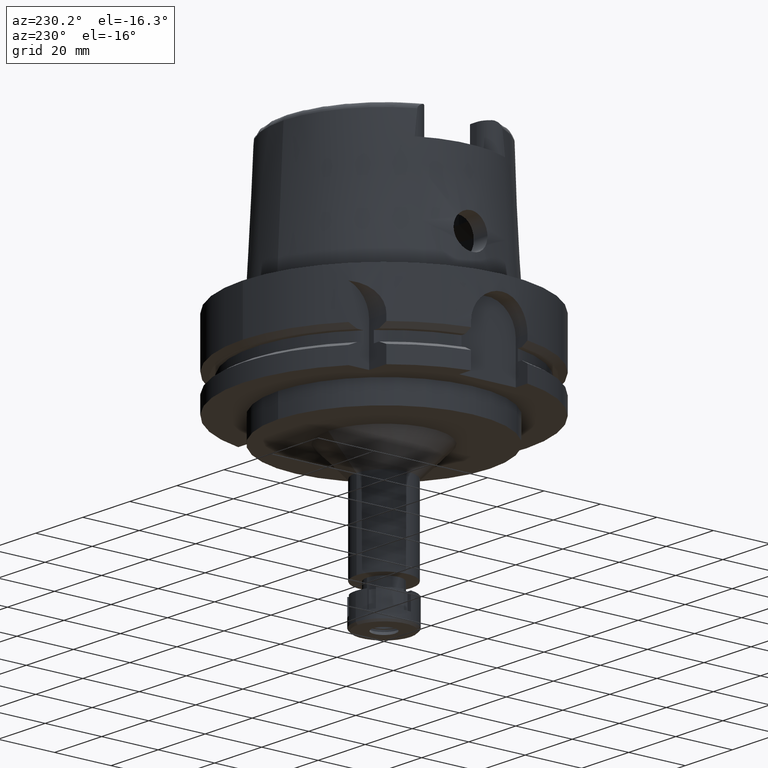
[diagram: clean part render]
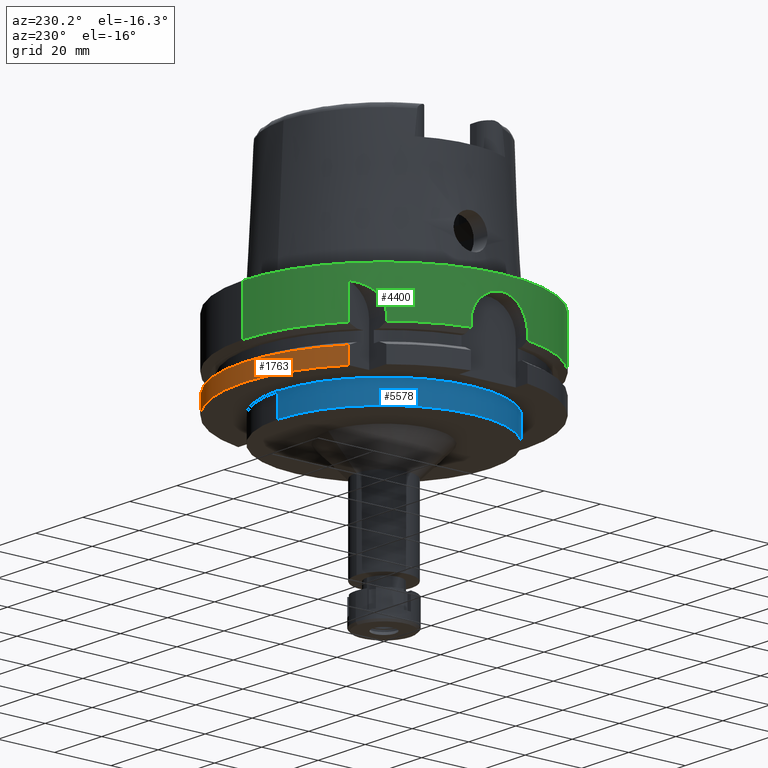
[diagram: same view with three faces highlighted in distinct colors, each labeled with its STEP entity id]
A machine part, auxiliary view with three faces highlighted in distinct colors.
Their STEP definitions:

[orange] entity #1763 — the highlighted cylindrical surface (partial cylindrical patch) has radius 50 mm, axis along (0, 0, 1).
#22 = DIRECTION ( 'NONE',  ( 0.0000000000000000000, 1.000000000000000000, 0.0000000000000000000 ) ) ;
#129 = CARTESIAN_POINT ( 'NONE',  ( 0.0000000000000000000, 0.0000000000000000000, -23.24759526419000011 ) ) ;
#160 = EDGE_CURVE ( 'NONE', #4142, #3308, #2028, .T. ) ;
#397 = CARTESIAN_POINT ( 'NONE',  ( -31.50000000000000000, 38.82975663071000128, -29.00000000000000000 ) ) ;
#509 = CARTESIAN_POINT ( 'NONE',  ( 0.0000000000000000000, 0.0000000000000000000, -91.75000000000000000 ) ) ;
#604 = DIRECTION ( 'NONE',  ( -0.6299999999999789102, 0.7765951326141738997, 0.0000000000000000000 ) ) ;
#613 = ORIENTED_EDGE ( 'NONE', *, *, #5930, .T. ) ;
#700 = EDGE_CURVE ( 'NONE', #4907, #3308, #1897, .T. ) ;
#894 = CARTESIAN_POINT ( 'NONE',  ( -31.50000355985999789, 38.82975374283000036, -23.24760820811999906 ) ) ;
#1071 = DIRECTION ( 'NONE',  ( 0.0000000000000000000, 0.0000000000000000000, -1.000000000000000000 ) ) ;
#1157 = AXIS2_PLACEMENT_3D ( 'NONE', #1813, #5655, #4725 ) ;
#1226 = VECTOR ( 'NONE', #4230, 1000.000000000000000 ) ;
#1706 = ORIENTED_EDGE ( 'NONE', *, *, #160, .T. ) ;
#1763 = ADVANCED_FACE ( 'NONE', ( #3809 ), #2417, .T. ) ;
#1813 = CARTESIAN_POINT ( 'NONE',  ( 0.0000000000000000000, 0.0000000000000000000, -29.00000000000000000 ) ) ;
#1897 = LINE ( 'NONE', #2246, #1226 ) ;
#2024 = ORIENTED_EDGE ( 'NONE', *, *, #4323, .F. ) ;
#2028 = CIRCLE ( 'NONE', #3737, 50.00000000000000711 ) ;
#2246 = CARTESIAN_POINT ( 'NONE',  ( 48.77499359303000404, 11.00000000000000000, -29.00000000000000000 ) ) ;
#2417 = CYLINDRICAL_SURFACE ( 'NONE', #4253, 50.00000000000000000 ) ;
#2480 = CARTESIAN_POINT ( 'NONE',  ( -31.50000355985999789, 38.82975374283000036, -23.24760820811999906 ) ) ;
#2973 = VECTOR ( 'NONE', #6185, 1000.000000000000000 ) ;
#3308 = VERTEX_POINT ( 'NONE', #5605 ) ;
#3737 = AXIS2_PLACEMENT_3D ( 'NONE', #129, #1071, #604 ) ;
#3809 = FACE_OUTER_BOUND ( 'NONE', #6026, .T. ) ;
#3862 = LINE ( 'NONE', #2480, #2973 ) ;
#4014 = VERTEX_POINT ( 'NONE', #397 ) ;
#4142 = VERTEX_POINT ( 'NONE', #894 ) ;
#4230 = DIRECTION ( 'NONE',  ( -8.399427413532000465E-14, -2.068976605539000027E-14, 1.000000000000000000 ) ) ;
#4253 = AXIS2_PLACEMENT_3D ( 'NONE', #509, #4348, #22 ) ;
#4323 = EDGE_CURVE ( 'NONE', #4142, #4014, #3862, .T. ) ;
#4348 = DIRECTION ( 'NONE',  ( 0.0000000000000000000, 0.0000000000000000000, 1.000000000000000000 ) ) ;
#4725 = DIRECTION ( 'NONE',  ( 0.0000000000000000000, 1.000000000000000000, 0.0000000000000000000 ) ) ;
#4907 = VERTEX_POINT ( 'NONE', #6155 ) ;
#5483 = CIRCLE ( 'NONE', #1157, 50.00000000000000000 ) ;
#5554 = ORIENTED_EDGE ( 'NONE', *, *, #700, .F. ) ;
#5605 = CARTESIAN_POINT ( 'NONE',  ( 48.77499359303000404, 11.00000000000000000, -23.24759526419000011 ) ) ;
#5655 = DIRECTION ( 'NONE',  ( 0.0000000000000000000, 0.0000000000000000000, 1.000000000000000000 ) ) ;
#5930 = EDGE_CURVE ( 'NONE', #4907, #4014, #5483, .T. ) ;
#6026 = EDGE_LOOP ( 'NONE', ( #1706, #5554, #613, #2024 ) ) ;
#6155 = CARTESIAN_POINT ( 'NONE',  ( 48.77499359303000404, 11.00000000000000000, -29.00000000000000000 ) ) ;
#6185 = DIRECTION ( 'NONE',  ( 6.188494047474892859E-07, 5.020316378013912240E-07, -0.9999999999996824762 ) ) ;

[blue] entity #5578 — the highlighted cylindrical surface (partial cylindrical patch) has radius 37.5 mm, axis along (0, 0, 1).
#141 = CIRCLE ( 'NONE', #3145, 37.50000000000000000 ) ;
#181 = CARTESIAN_POINT ( 'NONE',  ( 0.0000000000000000000, -37.50000000000000000, -29.00000000000000000 ) ) ;
#344 = CARTESIAN_POINT ( 'NONE',  ( 0.0000000000000000000, 0.0000000000000000000, -37.00000000000000000 ) ) ;
#495 = DIRECTION ( 'NONE',  ( 0.0000000000000000000, 1.000000000000000000, 0.0000000000000000000 ) ) ;
#704 = DIRECTION ( 'NONE',  ( 0.0000000000000000000, 0.0000000000000000000, 1.000000000000000000 ) ) ;
#788 = CYLINDRICAL_SURFACE ( 'NONE', #1961, 37.50000000000000000 ) ;
#1227 = CARTESIAN_POINT ( 'NONE',  ( 0.0000000000000000000, 37.50000000000000000, -37.00000000000000000 ) ) ;
#1827 = CARTESIAN_POINT ( 'NONE',  ( 0.0000000000000000000, 37.50000000000000000, -29.00000000000000000 ) ) ;
#1879 = EDGE_CURVE ( 'NONE', #2439, #3694, #141, .T. ) ;
#1961 = AXIS2_PLACEMENT_3D ( 'NONE', #5105, #704, #4637 ) ;
#2041 = CARTESIAN_POINT ( 'NONE',  ( 0.0000000000000000000, 0.0000000000000000000, -29.00000000000000000 ) ) ;
#2229 = DIRECTION ( 'NONE',  ( 0.0000000000000000000, 0.0000000000000000000, 1.000000000000000000 ) ) ;
#2350 = VECTOR ( 'NONE', #4800, 1000.000000000000000 ) ;
#2439 = VERTEX_POINT ( 'NONE', #181 ) ;
#2453 = CIRCLE ( 'NONE', #5681, 37.50000000000000000 ) ;
#2733 = EDGE_CURVE ( 'NONE', #3694, #3137, #5234, .T. ) ;
#2955 = ORIENTED_EDGE ( 'NONE', *, *, #4444, .T. ) ;
#3083 = DIRECTION ( 'NONE',  ( 0.0000000000000000000, -1.000000000000000000, 0.0000000000000000000 ) ) ;
#3137 = VERTEX_POINT ( 'NONE', #1227 ) ;
#3145 = AXIS2_PLACEMENT_3D ( 'NONE', #2041, #4947, #3083 ) ;
#3271 = CARTESIAN_POINT ( 'NONE',  ( 0.0000000000000000000, 37.50000000000000000, -29.00000000000000000 ) ) ;
#3456 = VECTOR ( 'NONE', #4712, 1000.000000000000000 ) ;
#3569 = EDGE_LOOP ( 'NONE', ( #2955, #4852, #4203, #5736 ) ) ;
#3622 = CARTESIAN_POINT ( 'NONE',  ( 0.0000000000000000000, -37.50000000000000000, -37.00000000000000000 ) ) ;
#3694 = VERTEX_POINT ( 'NONE', #3271 ) ;
#3712 = CARTESIAN_POINT ( 'NONE',  ( 0.0000000000000000000, -37.50000000000000000, -29.00000000000000000 ) ) ;
#4072 = FACE_OUTER_BOUND ( 'NONE', #3569, .T. ) ;
#4203 = ORIENTED_EDGE ( 'NONE', *, *, #1879, .T. ) ;
#4444 = EDGE_CURVE ( 'NONE', #3137, #5526, #2453, .T. ) ;
#4509 = EDGE_CURVE ( 'NONE', #2439, #5526, #5198, .T. ) ;
#4637 = DIRECTION ( 'NONE',  ( 0.0000000000000000000, 1.000000000000000000, 0.0000000000000000000 ) ) ;
#4712 = DIRECTION ( 'NONE',  ( 0.0000000000000000000, 0.0000000000000000000, -1.000000000000000000 ) ) ;
#4800 = DIRECTION ( 'NONE',  ( 0.0000000000000000000, 0.0000000000000000000, -1.000000000000000000 ) ) ;
#4852 = ORIENTED_EDGE ( 'NONE', *, *, #4509, .F. ) ;
#4947 = DIRECTION ( 'NONE',  ( 0.0000000000000000000, 0.0000000000000000000, -1.000000000000000000 ) ) ;
#5105 = CARTESIAN_POINT ( 'NONE',  ( 0.0000000000000000000, 0.0000000000000000000, -91.75000000000000000 ) ) ;
#5198 = LINE ( 'NONE', #3712, #2350 ) ;
#5234 = LINE ( 'NONE', #1827, #3456 ) ;
#5526 = VERTEX_POINT ( 'NONE', #3622 ) ;
#5578 = ADVANCED_FACE ( 'NONE', ( #4072 ), #788, .T. ) ;
#5681 = AXIS2_PLACEMENT_3D ( 'NONE', #344, #2229, #495 ) ;
#5736 = ORIENTED_EDGE ( 'NONE', *, *, #2733, .T. ) ;

[green] entity #4400 — the highlighted cylindrical surface (partial cylindrical patch) has radius 50 mm, axis along (0, 0, 1).
#69 = CARTESIAN_POINT ( 'NONE',  ( 1.065814103639999922E-14, 50.00000000000000000, -16.75240473580999989 ) ) ;
#79 = EDGE_CURVE ( 'NONE', #864, #297, #5508, .T. ) ;
#113 = CYLINDRICAL_SURFACE ( 'NONE', #3375, 50.00000000000000000 ) ;
#126 = VERTEX_POINT ( 'NONE', #695 ) ;
#180 = B_SPLINE_CURVE_WITH_KNOTS ( 'NONE', 3,
 ( #3071, #713, #6085, #299, #771, #1236, #3663, #240, #3096, #5024, #2690, #4617, #6025, #1683, #3191, #2714, #5112, #3604, #1180, #2209, #1270, #4141, #2628, #1651, #5999, #4645, #6050, #3540, #5523, #5494, #1205, #3573, #4553, #1709, #3125, #3629, #682, #2185, #1741, #274, #4114, #5458, #5051, #1148, #5586, #743, #2663, #327, #4592, #4998, #796, #5552, #2243, #2599 ),
 .UNSPECIFIED., .F., .F.,
 ( 4, 2, 2, 2, 2, 2, 2, 2, 2, 2, 2, 2, 2, 2, 2, 2, 2, 2, 2, 2, 2, 2, 2, 2, 2, 2, 4 ),
 ( 0.0000000000000000000, 0.03125000000000018041, 0.06250000000000036082, 0.1250000000000005274, 0.1875000000000006939, 0.2187500000000007772, 0.2500000000000008882, 0.2812500000000008327, 0.3125000000000007772, 0.3437500000000007772, 0.3750000000000007216, 0.4062500000000006106, 0.4375000000000004996, 0.5000000000000003331, 0.5312500000000003331, 0.5625000000000002220, 0.5937500000000002220, 0.6250000000000001110, 0.6562500000000001110, 0.6875000000000001110, 0.7187500000000000000, 0.7500000000000000000, 0.8125000000000000000, 0.8750000000000000000, 0.9062500000000000000, 0.9375000000000000000, 1.000000000000000000 ),
 .UNSPECIFIED. ) ;
#182 = CARTESIAN_POINT ( 'NONE',  ( -38.70796219815360217, 31.64969299481321841, -12.89513423459284347 ) ) ;
#208 = LINE ( 'NONE', #2119, #3966 ) ;
#240 = CARTESIAN_POINT ( 'NONE',  ( -49.18453679202103501, 8.997008706975728742, -10.58560031115996125 ) ) ;
#274 = CARTESIAN_POINT ( 'NONE',  ( -49.66071698588068983, -5.821521321562137530, -6.862562853044867239 ) ) ;
#283 = DIRECTION ( 'NONE',  ( -0.9797958971132723072, -0.1999999999999946265, 0.0000000000000000000 ) ) ;
#294 = DIRECTION ( 'NONE',  ( 3.933032361779000221E-13, -2.534170336197999844E-14, 1.000000000000000000 ) ) ;
#297 = VERTEX_POINT ( 'NONE', #724 ) ;
#299 = CARTESIAN_POINT ( 'NONE',  ( -49.00580010131366748, 9.921319867194130282, -13.70617931160539094 ) ) ;
#301 = CARTESIAN_POINT ( 'NONE',  ( -38.33684681027638419, 32.09868477749381555, -11.18927072535120715 ) ) ;
#327 = CARTESIAN_POINT ( 'NONE',  ( -49.11383813249577202, -9.372673253752681788, -11.49857013433636510 ) ) ;
#366 = CARTESIAN_POINT ( 'NONE',  ( -32.91422812286032240, 37.68248737807104476, -5.317891520637465064 ) ) ;
#496 = LINE ( 'NONE', #1933, #2573 ) ;
#661 = EDGE_CURVE ( 'NONE', #1471, #4020, #1169, .T. ) ;
#664 = CARTESIAN_POINT ( 'NONE',  ( -31.50000000000000000, 38.82975663071000128, -5.000000000003000267 ) ) ;
#682 = CARTESIAN_POINT ( 'NONE',  ( -49.80582381220375510, -4.411840447748504701, -6.019770981067466664 ) ) ;
#684 = CARTESIAN_POINT ( 'NONE',  ( -35.50467826710303143, 35.20597085633212231, -6.864037594086657812 ) ) ;
#695 = CARTESIAN_POINT ( 'NONE',  ( -48.98979485565999425, -10.00000000000000000, -15.00000000000000000 ) ) ;
#713 = CARTESIAN_POINT ( 'NONE',  ( -48.98979485566343328, 10.00000000000068567, -14.67477384672370100 ) ) ;
#724 = CARTESIAN_POINT ( 'NONE',  ( -48.98979485565999425, 10.00000000000000000, -16.75240473580999989 ) ) ;
#743 = CARTESIAN_POINT ( 'NONE',  ( -49.24041324778601592, -8.690181341200782228, -10.00850486952029961 ) ) ;
#750 = AXIS2_PLACEMENT_3D ( 'NONE', #4570, #5534, #1696 ) ;
#771 = CARTESIAN_POINT ( 'NONE',  ( -49.01532077359892980, 9.874334691806923914, -13.38637230126443356 ) ) ;
#772 = VERTEX_POINT ( 'NONE', #2811 ) ;
#773 = CARTESIAN_POINT ( 'NONE',  ( -38.56428282849721256, 31.82452935113140668, -12.10463663083011099 ) ) ;
#791 = LINE ( 'NONE', #4293, #3240 ) ;
#796 = CARTESIAN_POINT ( 'NONE',  ( -49.04050012748192700, -9.748510700173223853, -12.74779322321092678 ) ) ;
#831 = CIRCLE ( 'NONE', #1329, 50.00000000000000000 ) ;
#841 = CIRCLE ( 'NONE', #750, 50.00000000000000000 ) ;
#864 = VERTEX_POINT ( 'NONE', #2022 ) ;
#889 = CARTESIAN_POINT ( 'NONE',  ( -34.12331523355164364, 36.57299958314025190, -5.848486974067130362 ) ) ;
#1148 = CARTESIAN_POINT ( 'NONE',  ( -49.43022059887681507, -7.541711222667782266, -8.400035818733634585 ) ) ;
#1169 = B_SPLINE_CURVE_WITH_KNOTS ( 'NONE', 3,
 ( #3632, #4091, #3576, #182, #3165, #5090, #773, #4620, #2631, #6000, #2694, #301, #4144, #5932, #3606, #6053, #5590, #1743, #5525, #1207, #1273, #3194, #5116, #3128, #2600, #3073, #4999, #684, #4525, #5644, #4687, #5179, #2750, #6116, #889, #366, #2280 ),
 .UNSPECIFIED., .F., .F.,
 ( 4, 2, 2, 1, 1, 2, 2, 2, 2, 1, 1, 1, 2, 2, 2, 2, 1, 1, 1, 1, 2, 2, 4 ),
 ( 0.0000000000000000000, 0.1250000000000138778, 0.1875000000000204836, 0.2187500000000237588, 0.2343750000000253964, 0.2421875000000264788, 0.2500000000000275335, 0.3750000000000441869, 0.4375000000000523470, 0.4687500000000566769, 0.4843750000000582867, 0.4921875000000594524, 0.4960937500000598410, 0.5000000000000601741, 0.6250000000000589528, 0.6875000000000586198, 0.7187500000000578426, 0.7343750000000577316, 0.7421875000000580647, 0.7460937500000578426, 0.7480468750000577316, 0.7500000000000576206, 1.000000000000000000 ),
 .UNSPECIFIED. ) ;
#1175 = ORIENTED_EDGE ( 'NONE', *, *, #4597, .T. ) ;
#1178 = VERTEX_POINT ( 'NONE', #2205 ) ;
#1180 = CARTESIAN_POINT ( 'NONE',  ( -49.75134977747793386, 4.988750540692706181, -6.326968285705549810 ) ) ;
#1205 = CARTESIAN_POINT ( 'NONE',  ( -49.97485841623520031, -1.617643659042722337, -5.126307811638906919 ) ) ;
#1207 = CARTESIAN_POINT ( 'NONE',  ( -37.33558723083995545, 33.25738314690920561, -8.974785144386839164 ) ) ;
#1236 = CARTESIAN_POINT ( 'NONE',  ( -49.05327106856467623, 9.684690085511133972, -12.42418889641394308 ) ) ;
#1268 = EDGE_CURVE ( 'NONE', #772, #1471, #791, .T. ) ;
#1270 = CARTESIAN_POINT ( 'NONE',  ( -49.83161392523055611, 4.111256529898117407, -5.878401453227954931 ) ) ;
#1273 = CARTESIAN_POINT ( 'NONE',  ( -37.31949772624825101, 33.27543645617966206, -8.948593410968829431 ) ) ;
#1278 = DIRECTION ( 'NONE',  ( 0.0000000000000000000, 0.0000000000000000000, 1.000000000000000000 ) ) ;
#1329 = AXIS2_PLACEMENT_3D ( 'NONE', #4446, #4477, #3494 ) ;
#1330 = CARTESIAN_POINT ( 'NONE',  ( 0.0000000000000000000, 0.0000000000000000000, -16.75240473580999989 ) ) ;
#1362 = VERTEX_POINT ( 'NONE', #69 ) ;
#1418 = VECTOR ( 'NONE', #4001, 1000.000000000000000 ) ;
#1471 = VERTEX_POINT ( 'NONE', #2396 ) ;
#1560 = DIRECTION ( 'NONE',  ( 0.0000000000000000000, 0.0000000000000000000, 1.000000000000000000 ) ) ;
#1651 = CARTESIAN_POINT ( 'NONE',  ( -49.93465246831762983, 2.574515594304663146, -5.331509912841207566 ) ) ;
#1683 = CARTESIAN_POINT ( 'NONE',  ( -49.53074240762869351, 6.838214994895061238, -7.696049756172459233 ) ) ;
#1696 = DIRECTION ( 'NONE',  ( 0.0000000000000000000, -1.000000000000000000, 0.0000000000000000000 ) ) ;
#1709 = CARTESIAN_POINT ( 'NONE',  ( -49.89845962713047101, -3.200212664194284518, -5.520212011311235401 ) ) ;
#1741 = CARTESIAN_POINT ( 'NONE',  ( -49.72224263844700687, -5.270247532378740551, -6.495087439006737462 ) ) ;
#1743 = CARTESIAN_POINT ( 'NONE',  ( -37.41503597600288344, 33.16803798274937520, -9.106481375596089833 ) ) ;
#1775 = ORIENTED_EDGE ( 'NONE', *, *, #6150, .T. ) ;
#1805 = DIRECTION ( 'NONE',  ( -0.7765951326141738997, 0.6299999999999789102, 0.0000000000000000000 ) ) ;
#1933 = CARTESIAN_POINT ( 'NONE',  ( 0.0000000000000000000, 50.00000000000000000, 0.0000000000000000000 ) ) ;
#1962 = EDGE_CURVE ( 'NONE', #1362, #3598, #831, .T. ) ;
#2022 = CARTESIAN_POINT ( 'NONE',  ( -48.98979485565999425, 10.00000000000000000, -15.00000000000000000 ) ) ;
#2119 = CARTESIAN_POINT ( 'NONE',  ( 0.0000000000000000000, -50.00000000000000000, 0.0000000000000000000 ) ) ;
#2185 = CARTESIAN_POINT ( 'NONE',  ( -49.75118674888051373, -4.990374617870712015, -6.327904852930739565 ) ) ;
#2205 = CARTESIAN_POINT ( 'NONE',  ( 0.0000000000000000000, -50.00000000000000000, -16.75240473580999989 ) ) ;
#2209 = CARTESIAN_POINT ( 'NONE',  ( -49.80597247480898915, 4.410163543088208904, -6.018949576889928821 ) ) ;
#2243 = CARTESIAN_POINT ( 'NONE',  ( -48.98979485566344039, -10.00000000000062350, -14.34992636894185658 ) ) ;
#2265 = AXIS2_PLACEMENT_3D ( 'NONE', #1330, #1278, #283 ) ;
#2280 = CARTESIAN_POINT ( 'NONE',  ( -31.50000000000000000, 38.82975663071000128, -5.000000000003000267 ) ) ;
#2396 = CARTESIAN_POINT ( 'NONE',  ( -38.82975663071000128, 31.50000000000000000, -14.63689785921000031 ) ) ;
#2573 = VECTOR ( 'NONE', #4872, 1000.000000000000000 ) ;
#2599 = CARTESIAN_POINT ( 'NONE',  ( -48.98979485565999425, -10.00000000000000000, -15.00000000000000000 ) ) ;
#2600 = CARTESIAN_POINT ( 'NONE',  ( -36.15164938844437614, 34.54172854848084029, -7.449566234172574575 ) ) ;
#2621 = EDGE_CURVE ( 'NONE', #864, #126, #180, .T. ) ;
#2622 = EDGE_CURVE ( 'NONE', #5906, #1178, #208, .T. ) ;
#2628 = CARTESIAN_POINT ( 'NONE',  ( -49.89857304296576501, 3.198445865227089513, -5.519613993474083991 ) ) ;
#2631 = CARTESIAN_POINT ( 'NONE',  ( -38.49422724180217159, 31.90916060622631889, -11.80550857016866395 ) ) ;
#2638 = LINE ( 'NONE', #664, #4184 ) ;
#2663 = CARTESIAN_POINT ( 'NONE',  ( -49.18424439192069286, -8.998583427531235301, -10.58912033894725369 ) ) ;
#2690 = CARTESIAN_POINT ( 'NONE',  ( -49.36522353530786233, 7.944764735771467912, -8.917965014434019011 ) ) ;
#2694 = CARTESIAN_POINT ( 'NONE',  ( -38.47234374071356200, 31.93553905728730058, -11.71762655883478210 ) ) ;
#2714 = CARTESIAN_POINT ( 'NONE',  ( -49.62899891494356552, 6.085090487835675965, -7.057631952576974399 ) ) ;
#2750 = CARTESIAN_POINT ( 'NONE',  ( -35.14103744144917840, 35.56837379045186509, -6.586066734714544069 ) ) ;
#2811 = CARTESIAN_POINT ( 'NONE',  ( -38.82975730067999365, 31.49999917413000361, -16.75240773889999701 ) ) ;
#2823 = CIRCLE ( 'NONE', #3526, 50.00000000000000711 ) ;
#2893 = ORIENTED_EDGE ( 'NONE', *, *, #661, .F. ) ;
#2966 = EDGE_CURVE ( 'NONE', #3733, #126, #3623, .T. ) ;
#2984 = ORIENTED_EDGE ( 'NONE', *, *, #2622, .F. ) ;
#3065 = ORIENTED_EDGE ( 'NONE', *, *, #4320, .T. ) ;
#3071 = CARTESIAN_POINT ( 'NONE',  ( -48.98979485565999425, 10.00000000000000000, -15.00000000000000000 ) ) ;
#3073 = CARTESIAN_POINT ( 'NONE',  ( -35.96050349738803931, 34.74087439841420633, -7.262053099037965254 ) ) ;
#3096 = CARTESIAN_POINT ( 'NONE',  ( -49.24057617454466396, 8.689264381284511174, -10.00689432263757084 ) ) ;
#3125 = CARTESIAN_POINT ( 'NONE',  ( -49.87788521342822889, -3.505694118275405557, -5.628880875325581457 ) ) ;
#3128 = CARTESIAN_POINT ( 'NONE',  ( -36.69566194686110094, 33.96628487154298170, -8.038091430133812665 ) ) ;
#3165 = CARTESIAN_POINT ( 'NONE',  ( -38.66990143797972479, 31.69620764031247973, -12.65002047894687642 ) ) ;
#3191 = CARTESIAN_POINT ( 'NONE',  ( -49.56392084514536123, 6.594210339440434332, -7.474928745218238468 ) ) ;
#3194 = CARTESIAN_POINT ( 'NONE',  ( -37.31219306781184031, 33.28362741877433706, -8.936764101660559234 ) ) ;
#3212 = VERTEX_POINT ( 'NONE', #3813 ) ;
#3240 = VECTOR ( 'NONE', #6081, 1000.000000000000227 ) ;
#3289 = DIRECTION ( 'NONE',  ( 0.0000000000000000000, 0.0000000000000000000, 1.000000000000000000 ) ) ;
#3375 = AXIS2_PLACEMENT_3D ( 'NONE', #5873, #1560, #3485 ) ;
#3485 = DIRECTION ( 'NONE',  ( 0.0000000000000000000, 1.000000000000000000, 0.0000000000000000000 ) ) ;
#3494 = DIRECTION ( 'NONE',  ( 0.0000000000000000000, 1.000000000000000000, 0.0000000000000000000 ) ) ;
#3526 = AXIS2_PLACEMENT_3D ( 'NONE', #5710, #3289, #1805 ) ;
#3540 = CARTESIAN_POINT ( 'NONE',  ( -49.99999360500561352, -0.3269239678294740270, -5.000048098238591088 ) ) ;
#3573 = CARTESIAN_POINT ( 'NONE',  ( -49.94994066468481009, -2.259794752817469998, -5.253209555805508302 ) ) ;
#3576 = CARTESIAN_POINT ( 'NONE',  ( -38.79930802257090505, 31.53775839751965648, -13.63545053873040835 ) ) ;
#3585 = DIRECTION ( 'NONE',  ( -3.028823767049074487E-07, -2.457085509676059455E-07, -0.9999999999999239497 ) ) ;
#3598 = VERTEX_POINT ( 'NONE', #4419 ) ;
#3604 = CARTESIAN_POINT ( 'NONE',  ( -49.72222128286315268, 5.270358358214858541, -6.495232976551799098 ) ) ;
#3606 = CARTESIAN_POINT ( 'NONE',  ( -37.78105984104600878, 32.75094182949974453, -9.787213188296764343 ) ) ;
#3623 = LINE ( 'NONE', #5993, #4481 ) ;
#3629 = CARTESIAN_POINT ( 'NONE',  ( -49.83132479517585267, -4.114898999067257535, -5.879966185546440904 ) ) ;
#3632 = CARTESIAN_POINT ( 'NONE',  ( -38.82975663071000128, 31.50000000000000000, -14.63689785921000031 ) ) ;
#3657 = ORIENTED_EDGE ( 'NONE', *, *, #2621, .T. ) ;
#3663 = CARTESIAN_POINT ( 'NONE',  ( -49.09036018453721084, 9.497439764034860232, -11.80158618435103435 ) ) ;
#3675 = CARTESIAN_POINT ( 'NONE',  ( -31.50000000000000000, 38.82975663071000128, -5.000000000003000267 ) ) ;
#3733 = VERTEX_POINT ( 'NONE', #5816 ) ;
#3813 = CARTESIAN_POINT ( 'NONE',  ( 0.0000000000000000000, 50.00000000000000000, 0.0000000000000000000 ) ) ;
#3957 = FACE_OUTER_BOUND ( 'NONE', #5708, .T. ) ;
#3966 = VECTOR ( 'NONE', #5964, 1000.000000000000000 ) ;
#3968 = EDGE_CURVE ( 'NONE', #4020, #3598, #2638, .T. ) ;
#3971 = CARTESIAN_POINT ( 'NONE',  ( -48.98979485565999425, 10.00000000000000000, -15.00000000000000000 ) ) ;
#4001 = DIRECTION ( 'NONE',  ( -4.014125812537999910E-13, -2.635537149646000036E-14, -1.000000000000000000 ) ) ;
#4020 = VERTEX_POINT ( 'NONE', #3675 ) ;
#4051 = EDGE_CURVE ( 'NONE', #3733, #1178, #4589, .T. ) ;
#4091 = CARTESIAN_POINT ( 'NONE',  ( -38.82975663071002970, 31.50000000000000711, -14.13564020427370771 ) ) ;
#4114 = CARTESIAN_POINT ( 'NONE',  ( -49.62881521156744924, -6.086586877430945286, -7.058779782209500198 ) ) ;
#4141 = CARTESIAN_POINT ( 'NONE',  ( -49.87786566908136621, 3.505808458107192660, -5.628992301551427602 ) ) ;
#4144 = CARTESIAN_POINT ( 'NONE',  ( -38.17632840161917329, 32.29025700846633384, -10.70682601206509510 ) ) ;
#4184 = VECTOR ( 'NONE', #3585, 1000.000000000000114 ) ;
#4228 = ORIENTED_EDGE ( 'NONE', *, *, #1962, .T. ) ;
#4293 = CARTESIAN_POINT ( 'NONE',  ( -38.82975730067999365, 31.49999917413000361, -16.75240773889999701 ) ) ;
#4320 = EDGE_CURVE ( 'NONE', #3212, #1362, #496, .T. ) ;
#4400 = ADVANCED_FACE ( 'NONE', ( #3957 ), #113, .T. ) ;
#4419 = CARTESIAN_POINT ( 'NONE',  ( -31.50000355958999876, 38.82975374304999860, -16.75239179145000179 ) ) ;
#4425 = ORIENTED_EDGE ( 'NONE', *, *, #1268, .F. ) ;
#4446 = CARTESIAN_POINT ( 'NONE',  ( 0.0000000000000000000, 0.0000000000000000000, -16.75240473580999989 ) ) ;
#4453 = ORIENTED_EDGE ( 'NONE', *, *, #79, .F. ) ;
#4477 = DIRECTION ( 'NONE',  ( 0.0000000000000000000, 0.0000000000000000000, 1.000000000000000000 ) ) ;
#4481 = VECTOR ( 'NONE', #294, 1000.000000000000000 ) ;
#4525 = CARTESIAN_POINT ( 'NONE',  ( -35.31811538087255542, 35.39270393328067144, -6.717999936779102121 ) ) ;
#4553 = CARTESIAN_POINT ( 'NONE',  ( -49.93455893158446912, -2.576326564035913425, -5.331990395739968136 ) ) ;
#4570 = CARTESIAN_POINT ( 'NONE',  ( 0.0000000000000000000, 0.0000000000000000000, 0.0000000000000000000 ) ) ;
#4589 = CIRCLE ( 'NONE', #2265, 49.99999999999997868 ) ;
#4592 = CARTESIAN_POINT ( 'NONE',  ( -49.09278989258923076, -9.481937093880391743, -11.80611569216966039 ) ) ;
#4597 = EDGE_CURVE ( 'NONE', #5906, #3212, #841, .T. ) ;
#4617 = CARTESIAN_POINT ( 'NONE',  ( -49.43056103556367731, 7.527563822850312114, -8.408713046767678279 ) ) ;
#4620 = CARTESIAN_POINT ( 'NONE',  ( -38.51599323902661354, 31.88290122116221781, -11.89496907135688453 ) ) ;
#4645 = CARTESIAN_POINT ( 'NONE',  ( -49.98727337604294263, 1.297072131884471791, -5.063079227123298942 ) ) ;
#4687 = CARTESIAN_POINT ( 'NONE',  ( -35.17537714076440380, 35.53442474838674769, -6.611163554867837355 ) ) ;
#4793 = CARTESIAN_POINT ( 'NONE',  ( 0.0000000000000000000, -50.00000000000000000, 0.0000000000000000000 ) ) ;
#4797 = ORIENTED_EDGE ( 'NONE', *, *, #3968, .F. ) ;
#4872 = DIRECTION ( 'NONE',  ( 0.0000000000000000000, -2.969006079282000197E-14, -1.000000000000000000 ) ) ;
#4998 = CARTESIAN_POINT ( 'NONE',  ( -49.05614964883165641, -9.669712101280428129, -12.42999805991012785 ) ) ;
#4999 = CARTESIAN_POINT ( 'NONE',  ( -35.65907210342739830, 35.04931817855785425, -6.994435391380782185 ) ) ;
#5024 = CARTESIAN_POINT ( 'NONE',  ( -49.33322137804878338, 8.140496473599078797, -9.182651765820173395 ) ) ;
#5051 = CARTESIAN_POINT ( 'NONE',  ( -49.53067426088643543, -6.838737925735863143, -7.696485171463538499 ) ) ;
#5090 = CARTESIAN_POINT ( 'NONE',  ( -38.60139206966674408, 31.77950242145040960, -12.28584843088470002 ) ) ;
#5112 = CARTESIAN_POINT ( 'NONE',  ( -49.66109665971371356, 5.818199470677054563, -6.860273031121215226 ) ) ;
#5116 = CARTESIAN_POINT ( 'NONE',  ( -37.01910349946915346, 33.61201371639223368, -8.465172184773358310 ) ) ;
#5179 = CARTESIAN_POINT ( 'NONE',  ( -35.15478481536071342, 35.55478755722641893, -6.596094398408751225 ) ) ;
#5298 = ORIENTED_EDGE ( 'NONE', *, *, #4051, .T. ) ;
#5458 = CARTESIAN_POINT ( 'NONE',  ( -49.56373229000910641, -6.595625869068790337, -7.476172084829850739 ) ) ;
#5494 = CARTESIAN_POINT ( 'NONE',  ( -49.98420942202846362, -1.297367244915108131, -5.079122034242796069 ) ) ;
#5508 = LINE ( 'NONE', #3971, #1418 ) ;
#5523 = CARTESIAN_POINT ( 'NONE',  ( -49.99680002002526891, -0.6514146689907366339, -5.015875041971512793 ) ) ;
#5525 = CARTESIAN_POINT ( 'NONE',  ( -37.35962483181180005, 33.23039207253952299, -9.014144378500800414 ) ) ;
#5534 = DIRECTION ( 'NONE',  ( 0.0000000000000000000, 0.0000000000000000000, -1.000000000000000000 ) ) ;
#5552 = CARTESIAN_POINT ( 'NONE',  ( -49.00274337469998898, -9.937182510806508162, -13.70561547086232501 ) ) ;
#5586 = CARTESIAN_POINT ( 'NONE',  ( -49.36390707117950427, -7.958783024033693643, -8.909500093872697590 ) ) ;
#5590 = CARTESIAN_POINT ( 'NONE',  ( -37.52315189874543933, 33.04585285732654398, -9.293129057533683124 ) ) ;
#5644 = CARTESIAN_POINT ( 'NONE',  ( -35.22322475179429802, 35.48702787075809795, -6.646518341233776717 ) ) ;
#5708 = EDGE_LOOP ( 'NONE', ( #2893, #4425, #1775, #4453, #3657, #6203, #5298, #2984, #1175, #3065, #4228, #4797 ) ) ;
#5710 = CARTESIAN_POINT ( 'NONE',  ( 0.0000000000000000000, 0.0000000000000000000, -16.75240473580999989 ) ) ;
#5816 = CARTESIAN_POINT ( 'NONE',  ( -48.98979485565999425, -10.00000000000000000, -16.75240473580999989 ) ) ;
#5873 = CARTESIAN_POINT ( 'NONE',  ( 0.0000000000000000000, 0.0000000000000000000, -91.75000000000000000 ) ) ;
#5906 = VERTEX_POINT ( 'NONE', #4793 ) ;
#5932 = CARTESIAN_POINT ( 'NONE',  ( -37.88606295979419514, 32.62931670255610328, -10.01335100534272016 ) ) ;
#5964 = DIRECTION ( 'NONE',  ( 0.0000000000000000000, 2.969006079282000197E-14, -1.000000000000000000 ) ) ;
#5993 = CARTESIAN_POINT ( 'NONE',  ( -48.98979485565999425, -10.00000000000000000, -16.75240473580999989 ) ) ;
#5999 = CARTESIAN_POINT ( 'NONE',  ( -49.95007296249473683, 2.256697800569571033, -5.252537339674993255 ) ) ;
#6000 = CARTESIAN_POINT ( 'NONE',  ( -38.47947869723478220, 31.92694207467106082, -11.74595899068376781 ) ) ;
#6025 = CARTESIAN_POINT ( 'NONE',  ( -49.46402646853832152, 7.305184000900601937, -8.163237007348120855 ) ) ;
#6050 = CARTESIAN_POINT ( 'NONE',  ( -50.00001276120485016, 0.6509093675188912798, -4.999956924247984880 ) ) ;
#6053 = CARTESIAN_POINT ( 'NONE',  ( -37.61118320571390683, 32.94552546534065129, -9.456421963562304356 ) ) ;
#6081 = DIRECTION ( 'NONE',  ( 3.166955095344913800E-07, 3.903884141554897929E-07, 0.9999999999998735456 ) ) ;
#6085 = CARTESIAN_POINT ( 'NONE',  ( -48.99301409864090573, 9.984267675071087922, -14.35096447838951228 ) ) ;
#6116 = CARTESIAN_POINT ( 'NONE',  ( -35.13510466096872875, 35.57423417065690785, -6.581750958602481383 ) ) ;
#6150 = EDGE_CURVE ( 'NONE', #772, #297, #2823, .T. ) ;
#6203 = ORIENTED_EDGE ( 'NONE', *, *, #2966, .F. ) ;